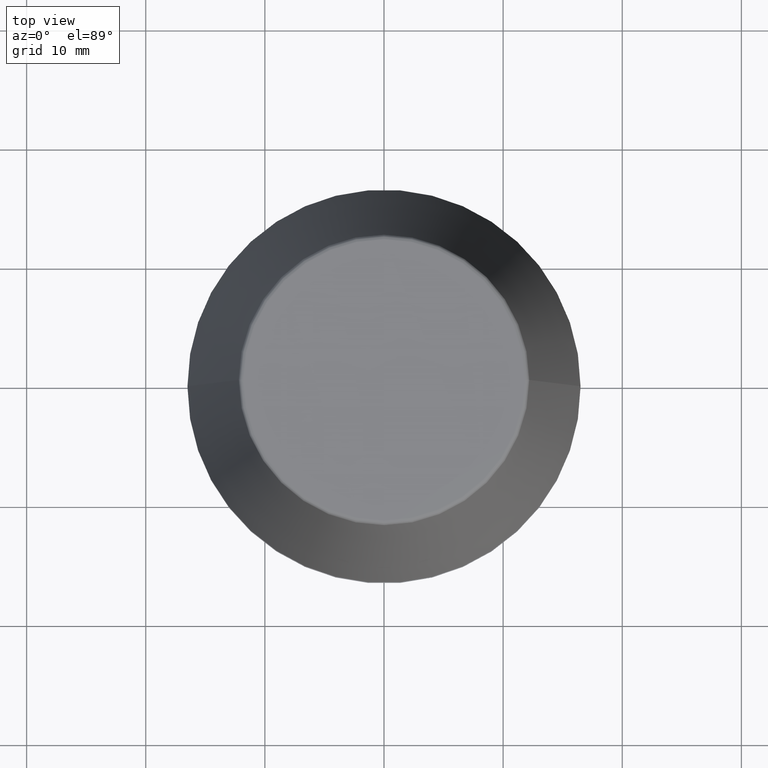
[diagram: clean part render]
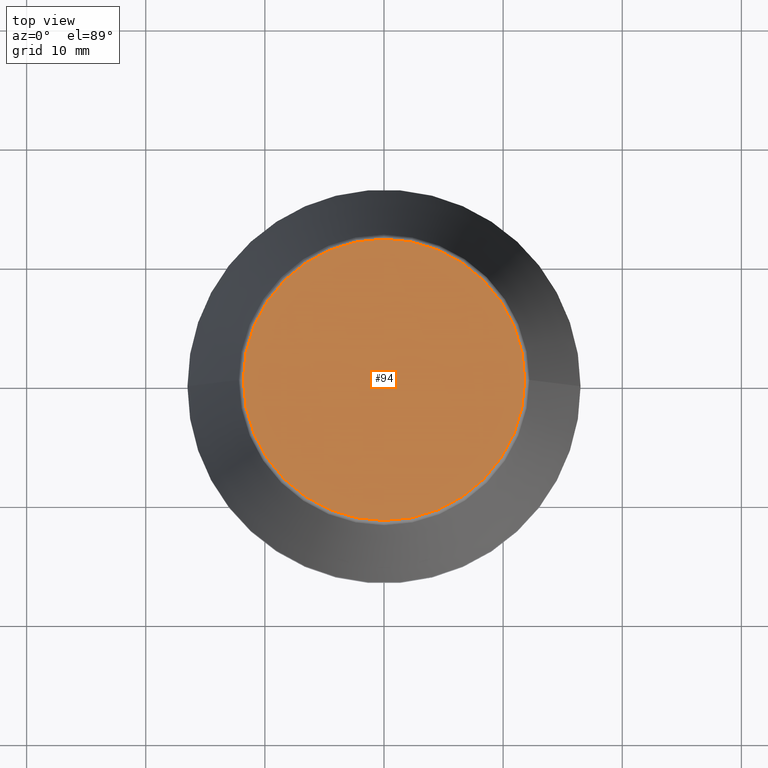
[diagram: same view with one face highlighted and labeled with its STEP entity id]
A machine part, top view. The second image highlights one B-rep face of the part: STEP entity #94.
In plain terms, the highlighted planar face has unit normal (0, 0, -1).
Its self-contained STEP definition (entity closure, byte-faithful):
#37 = DIRECTION ( 'NONE',  ( -0.0000000000000000000, -0.0000000000000000000, 1.000000000000000000 ) ) ;
#44 = ORIENTED_EDGE ( 'NONE', *, *, #234, .T. ) ;
#50 = VERTEX_POINT ( 'NONE', #223 ) ;
#53 = AXIS2_PLACEMENT_3D ( 'NONE', #301, #37, #266 ) ;
#83 = AXIS2_PLACEMENT_3D ( 'NONE', #92, #365, #188 ) ;
#92 = CARTESIAN_POINT ( 'NONE',  ( 0.0000000000000000000, 0.0000000000000000000, 40.00000000000000700 ) ) ;
#94 = ADVANCED_FACE ( 'NONE', ( #217 ), #110, .F. ) ;
#108 = DIRECTION ( 'NONE',  ( -1.000000000000000000, 0.0000000000000000000, -0.0000000000000000000 ) ) ;
#110 = PLANE ( 'NONE',  #159 ) ;
#119 = ORIENTED_EDGE ( 'NONE', *, *, #190, .T. ) ;
#125 = EDGE_LOOP ( 'NONE', ( #44, #119 ) ) ;
#157 = CARTESIAN_POINT ( 'NONE',  ( 11.80989888411031400, 0.0000000000000000000, 40.00000000000000700 ) ) ;
#159 = AXIS2_PLACEMENT_3D ( 'NONE', #277, #166, #108 ) ;
#166 = DIRECTION ( 'NONE',  ( 0.0000000000000000000, 0.0000000000000000000, -1.000000000000000000 ) ) ;
#188 = DIRECTION ( 'NONE',  ( 1.000000000000000000, 0.0000000000000000000, 0.0000000000000000000 ) ) ;
#190 = EDGE_CURVE ( 'NONE', #50, #360, #199, .T. ) ;
#199 = CIRCLE ( 'NONE', #83, 11.80989888411031400 ) ;
#217 = FACE_OUTER_BOUND ( 'NONE', #125, .T. ) ;
#223 = CARTESIAN_POINT ( 'NONE',  ( -11.80989888411031400, 1.470550059081603400E-015, 40.00000000000000700 ) ) ;
#234 = EDGE_CURVE ( 'NONE', #360, #50, #322, .T. ) ;
#266 = DIRECTION ( 'NONE',  ( 1.000000000000000000, 0.0000000000000000000, 0.0000000000000000000 ) ) ;
#277 = CARTESIAN_POINT ( 'NONE',  ( 0.0000000000000000000, 11.80989888411031400, 40.00000000000000700 ) ) ;
#301 = CARTESIAN_POINT ( 'NONE',  ( 0.0000000000000000000, 0.0000000000000000000, 40.00000000000000700 ) ) ;
#322 = CIRCLE ( 'NONE', #53, 11.80989888411031400 ) ;
#360 = VERTEX_POINT ( 'NONE', #157 ) ;
#365 = DIRECTION ( 'NONE',  ( -0.0000000000000000000, -0.0000000000000000000, 1.000000000000000000 ) ) ;